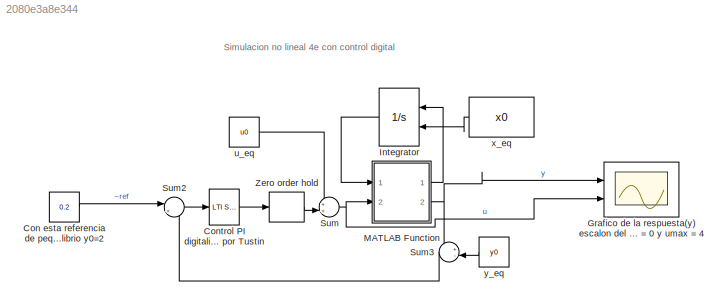
MODEL slx_2080e3a8e344
KIND model
CONFIG AbsTol = auto
CONFIG EnableMultiTasking = off
CONFIG FixedStep = 0.0001
CONFIG MaxStep = auto
CONFIG MinStep = auto
CONFIG RelTol = 1e-3
CONFIG SampleTimeConstraint = Unconstrained
CONFIG Solver = ode4
CONFIG SolverName = ode4
CONFIG StartTime = 0.0
CONFIG StopTime = 300
BLOCK [Constant] Con esta referencia de pequeña señal(20 %), quiero que en la salida y se mueva un 20% con respecto al equilibrio y0=2
  Value = 0.2
BLOCK [Reference] Control PI digitalizado por Tustin  REF=cstblocks/LTI System
  Ports = [1, 1]
  SourceBlock = cstblocks/LTI System
  SourceProductBaseCode = CT
  SourceProductName = Control System Toolbox
  SourceType = LTI Block
BLOCK [Scope] Grafico de la respuesta(y) escalon del sistema ante la referencia de pequeña señal 0.2, en que la salida se mueve un 20% con respecto al equilibrio y0=2. Despues se grafica acción de control u que es la respuesta al escalon a la referencia de pequeña señal ~ref=0.2, donde se puede ver que u no se excede entre los limites umin = 0 y umax = 4
  Floating = off
  NumInputPorts = 2
  Ports = [2]
  ScopeSpecificationString = Simulink.scopes.TimeScopeBlockCfg('CurrentConfiguration', extmgr.ConfigurationSet(extmgr.Configuration('Core','General UI',true,'FigureColor',[1 1 1]),extmgr.Configuration('Core','Source UI',true),extmgr.Configuration('Sources','WiredSimulink',true),extmgr.Configuration('Visuals','Time Domain',true,'SerializedDisplays',{struct('MinYLimReal','1.97277','MaxYLimReal','2.24505','YLabelReal','','MinYLi...<+3794ch>
BLOCK [Integrator] Integrator
  InitialConditionSource = external
  Ports = [2, 1]
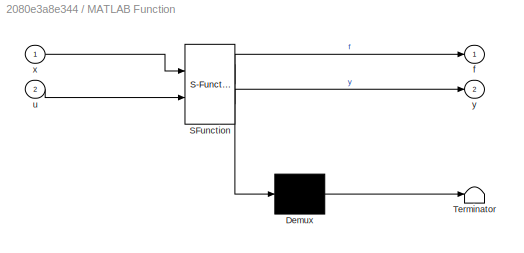
BLOCK [SubSystem] MATLAB Function
  ErrorFcn = Stateflow.Translate.translate
  PermitHierarchicalResolution = ExplicitOnly
  Ports = [2, 2]
  RequestExecContextInheritance = off
  SFBlockType = MATLAB Function
  TreatAsAtomicUnit = on
BLOCK [Demux] MATLAB Function/ Demux 
  Outputs = 1
  Ports = [1, 1]
BLOCK [S-Function] MATLAB Function/ SFunction 
  EnableBusSupport = on
  FunctionName = sf_sfun
  PortCounts = [2 3]
  Ports = [2, 3]
  SFcnIsStateOwnerBlock = off
  SFunctionDeploymentMode = off
  Tag = Stateflow S-Function resolucion_sim_ej_4e_final_31_07_2023 2
BLOCK [Terminator] MATLAB Function/ Terminator 
BLOCK [Outport] MATLAB Function/f
  IconDisplay = Port number
BLOCK [Inport] MATLAB Function/u
  IconDisplay = Port number
  Port = 2
BLOCK [Inport] MATLAB Function/x
  IconDisplay = Port number
BLOCK [Outport] MATLAB Function/y
  IconDisplay = Port number
  Port = 2
BLOCK [Sum] Sum
  IconShape = round
  InputSameDT = off
  Inputs = ++|
  OutDataTypeStr = Inherit: Inherit via internal rule
  Ports = [2, 1]
  SaturateOnIntegerOverflow = off
BLOCK [Sum] Sum2
  IconShape = round
  InputSameDT = off
  Inputs = |+-
  OutDataTypeStr = Inherit: Inherit via internal rule
  Ports = [2, 1]
  SaturateOnIntegerOverflow = off
BLOCK [Sum] Sum3
  IconShape = round
  InputSameDT = off
  Inputs = +-|
  OutDataTypeStr = Inherit: Inherit via internal rule
  Ports = [2, 1]
  SaturateOnIntegerOverflow = off
BLOCK [ZeroOrderHold] Zero order hold
  SampleTime = -1
BLOCK [Constant] u_eq
  Value = u0
BLOCK [Constant] x_eq
  Value = x0
BLOCK [Constant] y_eq
  Value = y0
ANNOTATION (root): Simulacion no lineal 4e con control digital
LINE Con esta referencia de pequeña señal(20 %), quiero que en la salida y se mueva un 20% con respecto al equilibrio y0=2:1 -> Sum2:1
LINE Control PI digitalizado por Tustin:1 -> Zero order hold:1
LINE Integrator:1 -> MATLAB Function:1
LINE MATLAB Function:1 -> Integrator:1
NET MATLAB Function:2 -> Grafico de la respuesta(y) escalon del sistema ante la referencia de pequeña señal 0.2, en que la salida se mueve un 20% con respecto al equilibrio y0=2. Despues se grafica acción de control u que es la respuesta al escalon a la referencia de pequeña señal ~ref=0.2, donde se puede ver que u no se excede entre los limites umin = 0 y umax = 4:1, Sum3:1
LINE Sum2:1 -> Control PI digitalizado por Tustin:1
LINE Sum3:1 -> Sum2:2
NET Sum:1 -> Grafico de la respuesta(y) escalon del sistema ante la referencia de pequeña señal 0.2, en que la salida se mueve un 20% con respecto al equilibrio y0=2. Despues se grafica acción de control u que es la respuesta al escalon a la referencia de pequeña señal ~ref=0.2, donde se puede ver que u no se excede entre los limites umin = 0 y umax = 4:2, MATLAB Function:2
LINE Zero order hold:1 -> Sum:2
LINE u_eq:1 -> Sum:1
LINE x_eq:1 -> Integrator:2
LINE y_eq:1 -> Sum3:2
note: NET lines group one-source signal fan-out (src -> all destinations, sorted); 1:1 wires keep LINE
CHART MATLAB Function states=1 transitions=1
  STATE_LABEL 'eML_blk_kernel()'
  STATE_LABEL 'SCRIPT:\nfunction [f,y] = fcn(x,u)\n\n% Valores buscados en papel\nalfa=1;\nbeta=2;% Es datos\n\n% Las ecuaciones de estados\nh1 = -alfa * sqrt(x(1)-x(2)) + u;\nh2 = alfa * sqrt(x(1)-x(2)) - beta * sqrt(x(2)-x(3));\nh3 = beta * sqrt(x(2)-x(3)) - sqrt(x(3));\n\nf=[h1;h2;h3];\n\ny = sqrt(x(3));\n'
